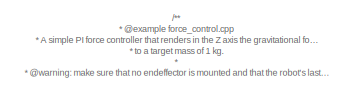
[diagram: root canvas - part 1/6, top right region]
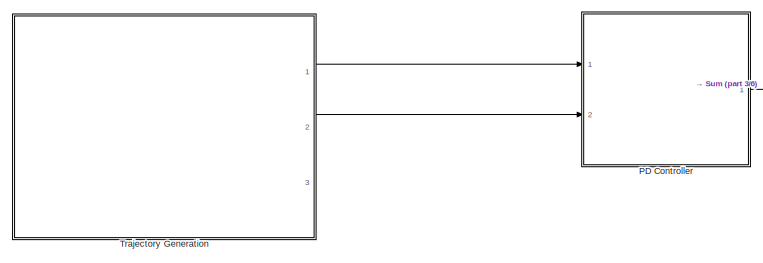
[diagram: root canvas - part 2/6, top left region]
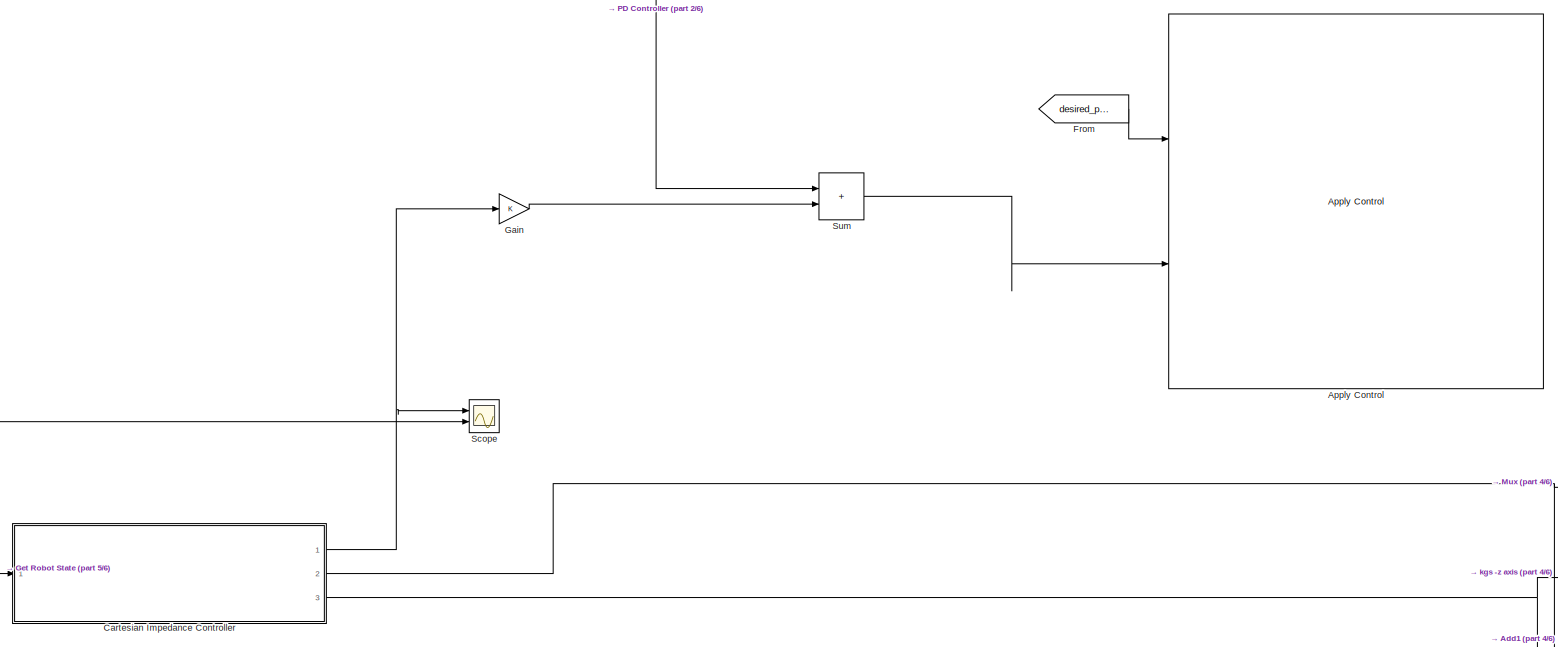
[diagram: root canvas - part 3/6, full width, middle band]
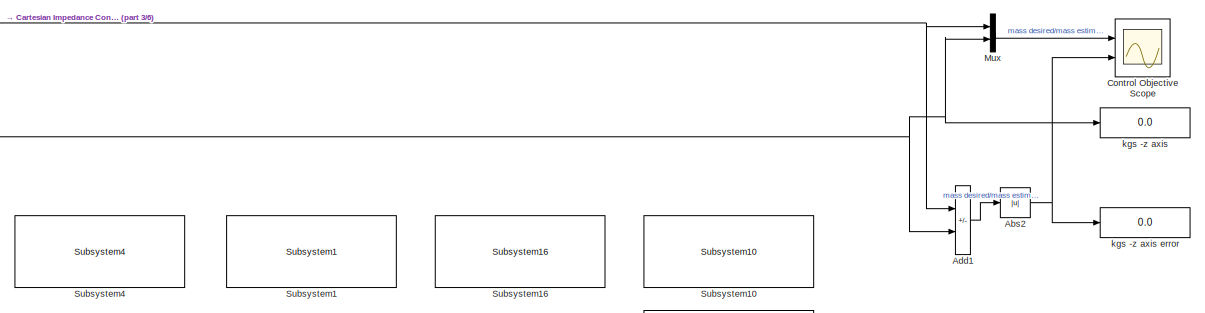
[diagram: root canvas - part 4/6, bottom right region]
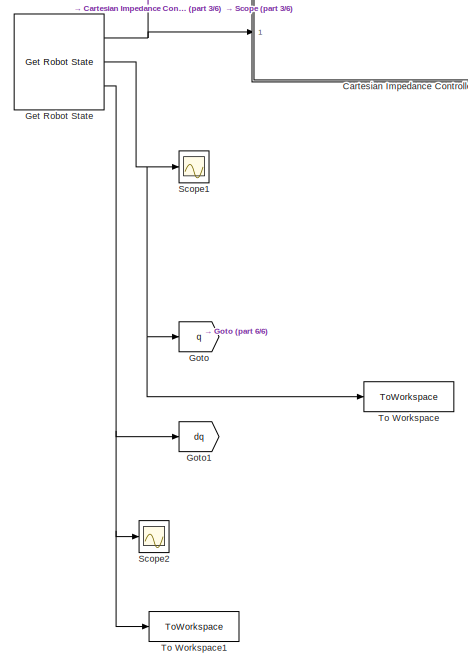
[diagram: root canvas - part 5/6, bottom left region]
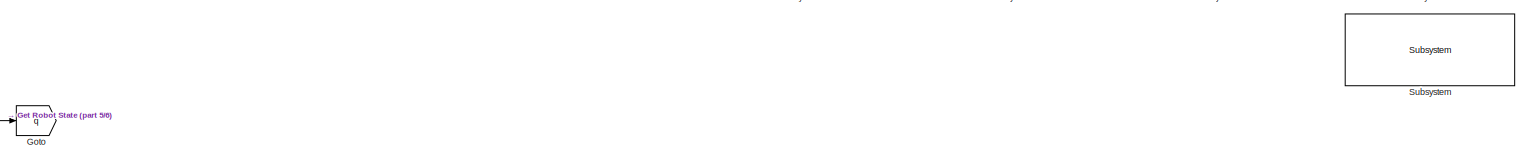
[diagram: root canvas - part 6/6, full width, bottom band]
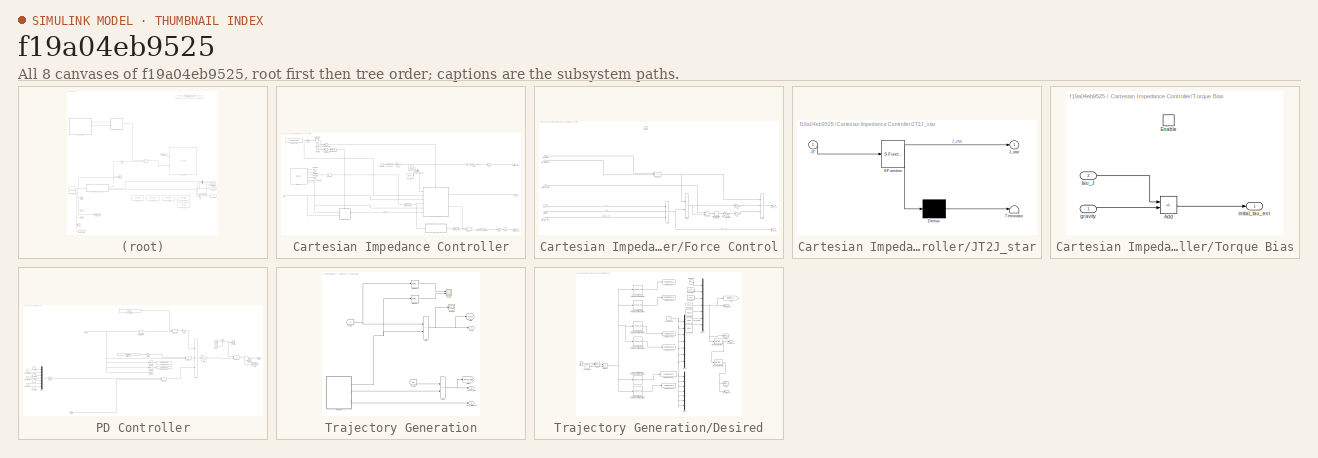
[diagram: thumbnail index - all 8 canvases of the model, root first then tree order]
MODEL slx_f19a04eb9525
KIND model
CONFIG AbsTol = auto
CONFIG EnableMultiTasking = on
CONFIG FixedStep = 0.001
CONFIG MaxStep = auto
CONFIG MinStep = auto
CONFIG PreLoadFcn = demos_common_configs();
CONFIG RelTol = 1e-3
CONFIG SampleTimeConstraint = Unconstrained
CONFIG SolverName = FixedStepDiscrete
CONFIG StartTime = 0.0
CONFIG StopTime = inf
BLOCK [Abs] Abs2
  SaturateOnIntegerOverflow = off
BLOCK [Sum] Add1
  IconShape = rectangular
  Inputs = +-
  Ports = [2, 1]
BLOCK [Reference] Apply Control  REF=franka_simulink_library/Apply Control
  Ports = [2]
  SourceBlock = franka_simulink_library/Apply Control
  SourceProductName = Franka Emika
  UserDataPersistent = on
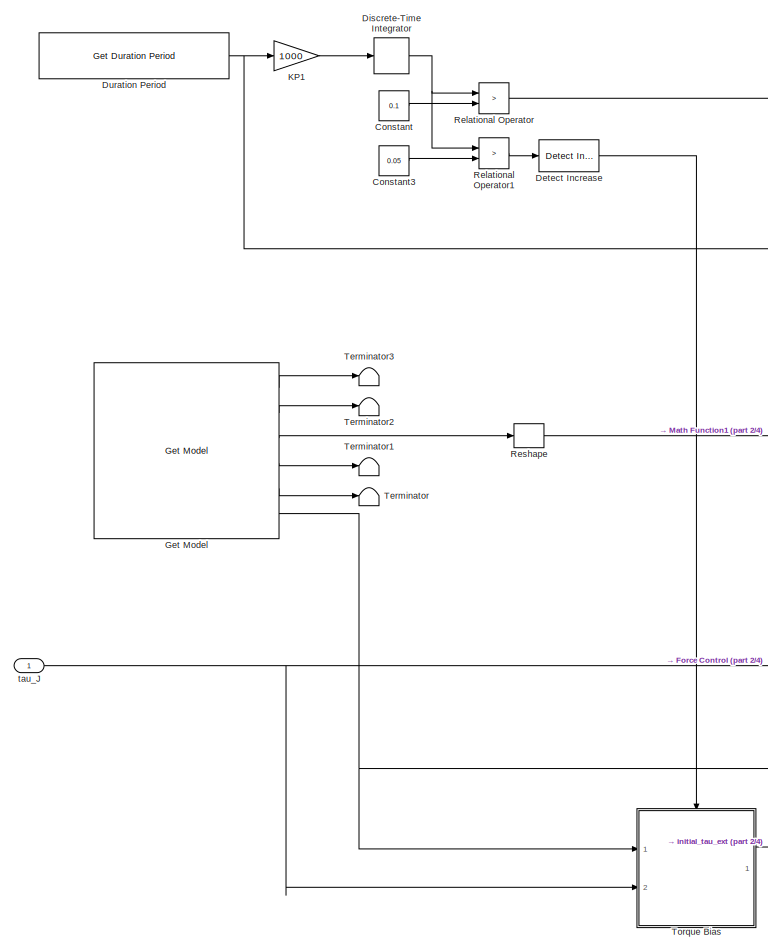
[diagram: Cartesian Impedance Controller - part 1/4, left side, full height]
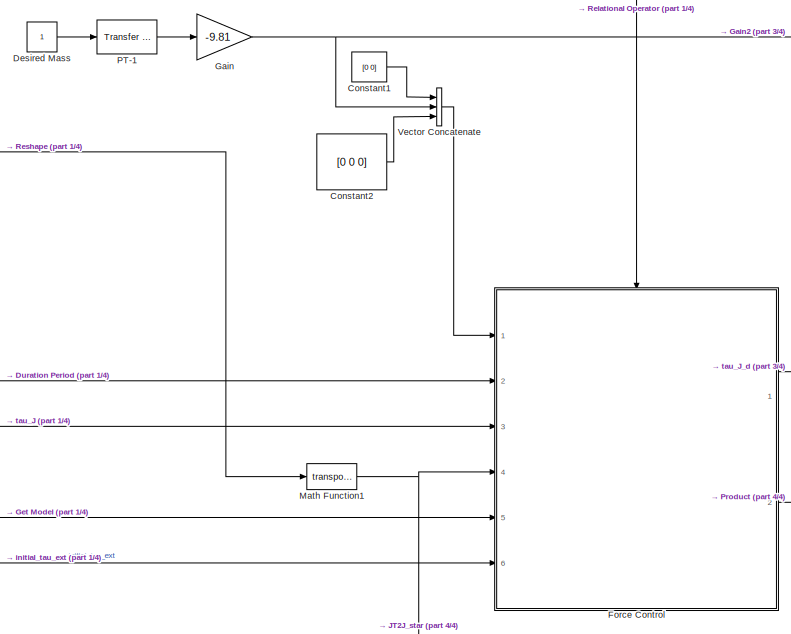
[diagram: Cartesian Impedance Controller - part 2/4, central region]
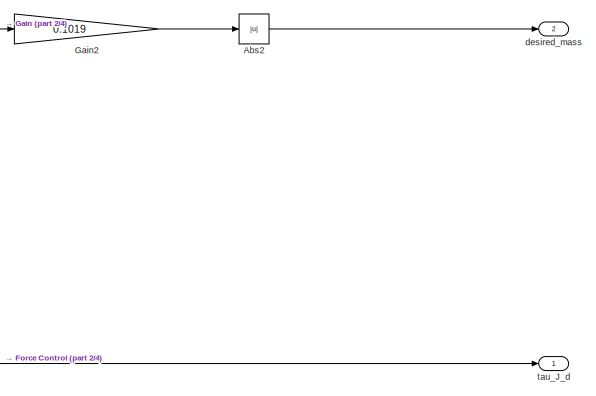
[diagram: Cartesian Impedance Controller - part 3/4, middle right region]
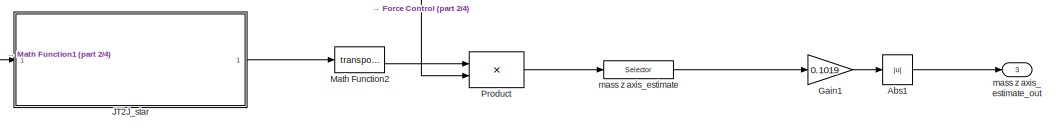
[diagram: Cartesian Impedance Controller - part 4/4, bottom right region]
BLOCK [SubSystem] Cartesian Impedance Controller
  Ports = [1, 3]
  RequestExecContextInheritance = off
BLOCK [Abs] Cartesian Impedance Controller/Abs1
  SaturateOnIntegerOverflow = off
BLOCK [Abs] Cartesian Impedance Controller/Abs2
  SaturateOnIntegerOverflow = off
BLOCK [Constant] Cartesian Impedance Controller/Constant
  Value = 0.1
BLOCK [Constant] Cartesian Impedance Controller/Constant1
  Value = [0 0]
BLOCK [Constant] Cartesian Impedance Controller/Constant2
  Value = [0 0 0]
BLOCK [Constant] Cartesian Impedance Controller/Constant3
  Value = 0.05
BLOCK [Constant] Cartesian Impedance Controller/Desired Mass
BLOCK [Reference] Cartesian Impedance Controller/Detect Increase  REF=simulink/Logic and Bit
Operations/Detect
Increase
  Ports = [1, 1]
  SourceBlock = simulink/Logic and Bit\nOperations/Detect\nIncrease
  SourceProductBaseCode = SL
  SourceType = Detect Increase
BLOCK [DiscreteIntegrator] Cartesian Impedance Controller/Discrete-Time Integrator
  ICPrevOutput = DiscIntNeverNeededParam
  ICPrevScaledInput = DiscIntNeverNeededParam
  Ports = [1, 1]
  SampleTime = -1
BLOCK [Reference] Cartesian Impedance Controller/Duration Period  REF=franka_simulink_library/Get Duration Period
  Ports = [0, 1]
  SourceBlock = franka_simulink_library/Get Duration Period
  SourceProductName = Franka Emika
BLOCK [SubSystem] Cartesian Impedance Controller/Force Control
  Ports = [6, 2, 1]
  RequestExecContextInheritance = off
BLOCK [Sum] Cartesian Impedance Controller/Force Control/Add
  IconShape = rectangular
  Inputs = +--
  Ports = [3, 1]
BLOCK [Sum] Cartesian Impedance Controller/Force Control/Add1
  IconShape = rectangular
  Inputs = +-
  Ports = [2, 1]
BLOCK [Sum] Cartesian Impedance Controller/Force Control/Add2
  IconShape = rectangular
  Inputs = +++
  Ports = [3, 1]
BLOCK [DiscreteIntegrator] Cartesian Impedance Controller/Force Control/Discrete-Time Integrator1
  ICPrevOutput = DiscIntNeverNeededParam
  ICPrevScaledInput = DiscIntNeverNeededParam
  Ports = [1, 1]
  SampleTime = 0.001
BLOCK [EnablePort] Cartesian Impedance Controller/Force Control/Enable
  Ports = []
BLOCK [Inport] Cartesian Impedance Controller/Force Control/Jacobian
  Port = 4
BLOCK [Gain] Cartesian Impedance Controller/Force Control/KI
  Gain = 2
BLOCK [Gain] Cartesian Impedance Controller/Force Control/KP
  Gain = 0.2
BLOCK [Product] Cartesian Impedance Controller/Force Control/Product
  Multiplication = Matrix(*)
  Ports = [2, 1]
BLOCK [Product] Cartesian Impedance Controller/Force Control/Product1
  Ports = [2, 1]
BLOCK [Inport] Cartesian Impedance Controller/Force Control/current_period
  Port = 2
BLOCK [Inport] Cartesian Impedance Controller/Force Control/desired mass
BLOCK [Inport] Cartesian Impedance Controller/Force Control/gravity
  Port = 5
BLOCK [Inport] Cartesian Impedance Controller/Force Control/initial_tau_ext
  Port = 6
BLOCK [Inport] Cartesian Impedance Controller/Force Control/tau_J
  Port = 3
BLOCK [Outport] Cartesian Impedance Controller/Force Control/tau_J_d
  InitialOutput = [0 0 0 0 0 0 0]
  VectorParamsAs1DForOutWhenUnconnected = off
BLOCK [Outport] Cartesian Impedance Controller/Force Control/tau_ext
  InitialOutput = [0 0 0 0 0 0 0]
  Port = 2
  VectorParamsAs1DForOutWhenUnconnected = off
BLOCK [Gain] Cartesian Impedance Controller/Force Control/time_sample_correction
  Gain = 1000
BLOCK [Gain] Cartesian Impedance Controller/Gain
  Gain = -9.81
BLOCK [Gain] Cartesian Impedance Controller/Gain1
  Gain = 0.1019
BLOCK [Gain] Cartesian Impedance Controller/Gain2
  Gain = 0.1019
BLOCK [Reference] Cartesian Impedance Controller/Get Model  REF=franka_simulink_library/Get Model
  Ports = [0, 6]
  SourceBlock = franka_simulink_library/Get Model
  SourceProductName = Franka Emika
BLOCK [SubSystem] Cartesian Impedance Controller/JT2J_star
  ErrorFcn = Stateflow.Translate.translate
  PermitHierarchicalResolution = ExplicitOnly
  Ports = [1, 1]
  RequestExecContextInheritance = off
  SFBlockType = MATLAB Function
  TreatAsAtomicUnit = on
BLOCK [Demux] Cartesian Impedance Controller/JT2J_star/ Demux 
  Outputs = 1
  Ports = [1, 1]
BLOCK [S-Function] Cartesian Impedance Controller/JT2J_star/ SFunction 
  EnableBusSupport = on
  FunctionName = sf_sfun
  PortCounts = [1 2]
  Ports = [1, 2]
  SFcnIsStateOwnerBlock = off
  SFunctionDeploymentMode = off
  Tag = Stateflow S-Function 15
BLOCK [Terminator] Cartesian Impedance Controller/JT2J_star/ Terminator 
BLOCK [Inport] Cartesian Impedance Controller/JT2J_star/JT
BLOCK [Outport] Cartesian Impedance Controller/JT2J_star/J_star
  VectorParamsAs1DForOutWhenUnconnected = off
BLOCK [Gain] Cartesian Impedance Controller/KP1
  Gain = 1000
BLOCK [Math] Cartesian Impedance Controller/Math Function1
  Operator = transpose
  Ports = [1, 1]
  SignedPower = on
BLOCK [Math] Cartesian Impedance Controller/Math Function2
  Operator = transpose
  Ports = [1, 1]
  SignedPower = on
BLOCK [Reference] Cartesian Impedance Controller/PT-1  REF=simulink/Discrete/Transfer Fcn
First Order
  Ports = [1, 1]
  SourceBlock = simulink/Discrete/Transfer Fcn\nFirst Order
  SourceProductBaseCode = SL
  SourceType = First Order Transfer Fcn
BLOCK [Product] Cartesian Impedance Controller/Product
  Multiplication = Matrix(*)
  Ports = [2, 1]
BLOCK [RelationalOperator] Cartesian Impedance Controller/Relational Operator
  InputSameDT = off
  Operator = >
  OutDataTypeStr = boolean
  Ports = [2, 1]
BLOCK [RelationalOperator] Cartesian Impedance Controller/Relational Operator1
  InputSameDT = off
  Operator = >
  OutDataTypeStr = boolean
  Ports = [2, 1]
BLOCK [Reshape] Cartesian Impedance Controller/Reshape
  OutputDimensionality = Customize
  OutputDimensions = [6,7]
  Ports = [1, 1]
BLOCK [Terminator] Cartesian Impedance Controller/Terminator
BLOCK [Terminator] Cartesian Impedance Controller/Terminator1
BLOCK [Terminator] Cartesian Impedance Controller/Terminator2
BLOCK [Terminator] Cartesian Impedance Controller/Terminator3
BLOCK [SubSystem] Cartesian Impedance Controller/Torque Bias
  Ports = [2, 1, 1]
  RequestExecContextInheritance = off
BLOCK [Sum] Cartesian Impedance Controller/Torque Bias/Add
  IconShape = rectangular
  Inputs = +-
  Ports = [2, 1]
BLOCK [EnablePort] Cartesian Impedance Controller/Torque Bias/Enable
  Ports = []
BLOCK [Inport] Cartesian Impedance Controller/Torque Bias/gravity
BLOCK [Outport] Cartesian Impedance Controller/Torque Bias/initial_tau_ext
  InitialOutput = [0 0 0 0 0 0 0]
  VectorParamsAs1DForOutWhenUnconnected = off
BLOCK [Inport] Cartesian Impedance Controller/Torque Bias/tau_J
  Port = 2
BLOCK [Concatenate] Cartesian Impedance Controller/Vector Concatenate
  NumInputs = 3
  Ports = [3, 1]
BLOCK [Outport] Cartesian Impedance Controller/desired_mass
  Port = 2
  VectorParamsAs1DForOutWhenUnconnected = off
BLOCK [Selector] Cartesian Impedance Controller/mass z axis_estimate
  IndexOptions = Index vector (dialog)
  Indices = 3
  InputPortWidth = 6
  OutputSizes = 1
  Ports = [1, 1]
BLOCK [Outport] Cartesian Impedance Controller/mass z axis_estimate_out
  Port = 3
  VectorParamsAs1DForOutWhenUnconnected = off
BLOCK [Inport] Cartesian Impedance Controller/tau_J
BLOCK [Outport] Cartesian Impedance Controller/tau_J_d
  VectorParamsAs1DForOutWhenUnconnected = off
BLOCK [Scope] Control Objective Scope
  Floating = off
  NumInputPorts = 2
  Ports = [2]
  ScopeSpecificationString = Simulink.scopes.TimeScopeBlockCfg('CurrentConfiguration', extmgr.ConfigurationSet(extmgr.Configuration('Core','General UI',true),extmgr.Configuration('Core','Source UI',true),extmgr.Configuration('Sources','WiredSimulink',true,'DataLoggingVariableName','ScopeData1','DataLoggingSaveFormat','StructureWithTime','DataLoggingDecimation','1','DataLoggingDecimateData',true),extmgr.Configuration('Visuals'...<+2391ch>
BLOCK [From] From
  GotoTag = desired_pos
  TagVisibility = global
BLOCK [Gain] Gain
BLOCK [Reference] Get Robot State  REF=franka_simulink_library/Get Robot State
  Ports = [0, 3]
  SourceBlock = franka_simulink_library/Get Robot State
  SourceProductName = Franka Emika
BLOCK [Goto] Goto
  GotoTag = q
  TagVisibility = global
BLOCK [Goto] Goto1
  GotoTag = dq
  TagVisibility = global
BLOCK [Mux] Mux
  DisplayOption = bar
  Inputs = 2
  Ports = [2, 1]
BLOCK [SubSystem] PD Controller
  Ports = [2, 1]
  RequestExecContextInheritance = off
BLOCK [Sum] PD Controller/Add1
  IconShape = rectangular
  Inputs = +++
  Ports = [3, 1]
BLOCK [Constant] PD Controller/Constant15
  Value = 70
BLOCK [Constant] PD Controller/Constant16
  Value = 70
BLOCK [Constant] PD Controller/Constant17
  Value = 70
BLOCK [Constant] PD Controller/Constant18
  Value = 15
BLOCK [Constant] PD Controller/Constant19
  Value = 5
BLOCK [Constant] PD Controller/Constant20
  Value = 5
BLOCK [Constant] PD Controller/Constant21
  Value = 5
BLOCK [Constant] PD Controller/Constant23
  Value = [2, 2, 2, 2, 2, 2, 2]
BLOCK [DiscreteIntegrator] PD Controller/Discrete-Time Integrator
  ICPrevOutput = DiscIntNeverNeededParam
  ICPrevScaledInput = DiscIntNeverNeededParam
  InitialConditionSetting = Auto
  Ports = [1, 1]
  SampleTime = -1
BLOCK [Gain] PD Controller/Gain
BLOCK [Gain] PD Controller/Gain1
  Gain = [1, 1, 1, 1, 1, 1, 1]
BLOCK [Gain] PD Controller/Gain2
BLOCK [Gain] PD Controller/Gain3
BLOCK [Goto] PD Controller/Goto
  GotoTag = PDtorque
  TagVisibility = global
BLOCK [Inport] PD Controller/Input
BLOCK [Inport] PD Controller/Input1
  Port = 2
BLOCK [Mux] PD Controller/Mux1
  DisplayOption = bar
  Inputs = 7
  Ports = [7, 1]
BLOCK [Product] PD Controller/Product1
  Ports = [2, 1]
BLOCK [Product] PD Controller/Product2
  Ports = [2, 1]
BLOCK [Product] PD Controller/Product3
  Ports = [2, 1]
BLOCK [Product] PD Controller/Product4
  Multiplication = Matrix(*)
  Ports = [2, 1]
BLOCK [Reference] PD Controller/Ramp  REF=simulink/Sources/Ramp
  Ports = [0, 1]
  SourceBlock = simulink/Sources/Ramp
  SourceProductBaseCode = SL
  SourceType = Ramp
BLOCK [Reference] PD Controller/Ramp1  REF=simulink/Sources/Ramp
  Ports = [0, 1]
  SourceBlock = simulink/Sources/Ramp
  SourceProductBaseCode = SL
  SourceType = Ramp
BLOCK [Scope] PD Controller/Scope
  Floating = off
  NumInputPorts = 1
  Ports = [1]
  ScopeSpecificationString = Simulink.scopes.TimeScopeBlockCfg('CurrentConfiguration', extmgr.ConfigurationSet(extmgr.Configuration('Core','General UI',true),extmgr.Configuration('Core','Source UI',true),extmgr.Configuration('Sources','WiredSimulink',true,'DataLoggingVariableName','ScopeData3'),extmgr.Configuration('Visuals','Time Domain',true),extmgr.Configuration('Tools','Plot Navigation',true),extmgr.Configuration('Tools',...<+40ch>
BLOCK [Scope] PD Controller/Scope1
  Floating = off
  NumInputPorts = 1
  Ports = [1]
  ScopeSpecificationString = Simulink.scopes.TimeScopeBlockCfg('CurrentConfiguration', extmgr.ConfigurationSet(extmgr.Configuration('Core','General UI',true),extmgr.Configuration('Core','Source UI',true),extmgr.Configuration('Sources','WiredSimulink',true,'DataLoggingVariableName','ScopeData4'),extmgr.Configuration('Visuals','Time Domain',true,'SerializedDisplays',{struct('MinYLimReal','-12.89609','MaxYLimReal','15.50932','YL...<+1483ch>
BLOCK [Scope] PD Controller/Scope6
  Floating = off
  NumInputPorts = 1
  Ports = [1]
  ScopeSpecificationString = Simulink.scopes.TimeScopeBlockCfg('CurrentConfiguration', extmgr.ConfigurationSet(extmgr.Configuration('Core','General UI',true),extmgr.Configuration('Core','Source UI',true),extmgr.Configuration('Sources','WiredSimulink',true,'DataLoggingVariableName','ScopeData21'),extmgr.Configuration('Visuals','Time Domain',true,'SerializedDisplays',{struct('MinYLimReal','-0.28411','MaxYLimReal','0.45465','YLa...<+1666ch>
BLOCK [Selector] PD Controller/Selector3
  IndexOptions = Index vector (dialog)
  Indices = [2]
  InputPortWidth = 7
  OutputSizes = 1
  Ports = [1, 1]
BLOCK [Selector] PD Controller/Selector4
  IndexOptions = Index vector (dialog)
  Indices = [4]
  InputPortWidth = 7
  OutputSizes = 1
  Ports = [1, 1]
BLOCK [Sum] PD Controller/Sum
  Inputs = |++
  Ports = [2, 1]
BLOCK [ToWorkspace] PD Controller/To Workspace2
  FixptAsFi = on
  MaxDataPoints = inf
  Ports = [1]
  SampleTime = -1
  SaveFormat = Structure With Time
  VariableName = pid_tracking_error_4
BLOCK [ToWorkspace] PD Controller/To Workspace3
  FixptAsFi = on
  MaxDataPoints = inf
  Ports = [1]
  SampleTime = -1
  SaveFormat = Structure With Time
  VariableName = pid_tracking_error_2
BLOCK [Outport] PD Controller/Torque
BLOCK [Constant] PD Controller/stiffness
  Value = diag([150, 150, 150, 15, 15, 15, 15])
  VectorParams1D = off
BLOCK [Scope] Scope
  Floating = off
  NumInputPorts = 2
  Ports = [2]
  ScopeSpecificationString = Simulink.scopes.TimeScopeBlockCfg('CurrentConfiguration', extmgr.ConfigurationSet(extmgr.Configuration('Core','General UI',true),extmgr.Configuration('Core','Source UI',true),extmgr.Configuration('Sources','WiredSimulink',true),extmgr.Configuration('Visuals','Time Domain',true,'SerializedDisplays',{struct('MinYLimReal','-65.5568','MaxYLimReal','31.01813','YLabelReal','','MinYLimMag','0.00000','Max...<+2111ch>
BLOCK [Scope] Scope1
  Floating = off
  NumInputPorts = 1
  Ports = [1]
  ScopeSpecificationString = Simulink.scopes.TimeScopeBlockCfg('CurrentConfiguration', extmgr.ConfigurationSet(extmgr.Configuration('Core','General UI',true),extmgr.Configuration('Core','Source UI',true),extmgr.Configuration('Sources','WiredSimulink',true,'DataLoggingVariableName','ScopeData1'),extmgr.Configuration('Visuals','Time Domain',true,'SerializedDisplays',{struct('MinYLimReal','-1.4193','MaxYLimReal','2.60353','YLabe...<+2034ch>
BLOCK [Scope] Scope2
  Floating = off
  NumInputPorts = 1
  Ports = [1]
  ScopeSpecificationString = Simulink.scopes.TimeScopeBlockCfg('CurrentConfiguration', extmgr.ConfigurationSet(extmgr.Configuration('Core','General UI',true),extmgr.Configuration('Core','Source UI',true),extmgr.Configuration('Sources','WiredSimulink',true,'DataLoggingVariableName','ScopeData2'),extmgr.Configuration('Visuals','Time Domain',true),extmgr.Configuration('Tools','Plot Navigation',true),extmgr.Configuration('Tools',...<+40ch>
BLOCK [Reference] Subsystem  REF=franka_simulink_library_misc/Subsystem
  Ports = []
  SourceBlock = franka_simulink_library_misc/Subsystem
BLOCK [Reference] Subsystem1  REF=franka_simulink_library_misc/Subsystem1
  Ports = []
  SourceBlock = franka_simulink_library_misc/Subsystem1
BLOCK [Reference] Subsystem10  REF=franka_simulink_library_misc/Subsystem10
  Ports = []
  SourceBlock = franka_simulink_library_misc/Subsystem10
BLOCK [Reference] Subsystem16  REF=franka_simulink_library_misc/Subsystem16
  Ports = []
  SourceBlock = franka_simulink_library_misc/Subsystem16
BLOCK [Reference] Subsystem4  REF=franka_simulink_library_misc/Subsystem4
  Ports = []
  SourceBlock = franka_simulink_library_misc/Subsystem4
BLOCK [Sum] Sum
  IconShape = rectangular
  Ports = [2, 1]
BLOCK [ToWorkspace] To Workspace
  FixptAsFi = on
  MaxDataPoints = inf
  Ports = [1]
  SampleTime = -1
  SaveFormat = Structure With Time
  VariableName = q
BLOCK [ToWorkspace] To Workspace1
  FixptAsFi = on
  MaxDataPoints = inf
  Ports = [1]
  SampleTime = -1
  SaveFormat = Structure With Time
  VariableName = dq
BLOCK [SubSystem] Trajectory Generation
  Ports = [0, 3]
  RequestExecContextInheritance = off
BLOCK [Sum] Trajectory Generation/Add
  IconShape = rectangular
  Inputs = -+
  Ports = [2, 1]
BLOCK [Sum] Trajectory Generation/Add2
  IconShape = rectangular
  Inputs = -+
  Ports = [2, 1]
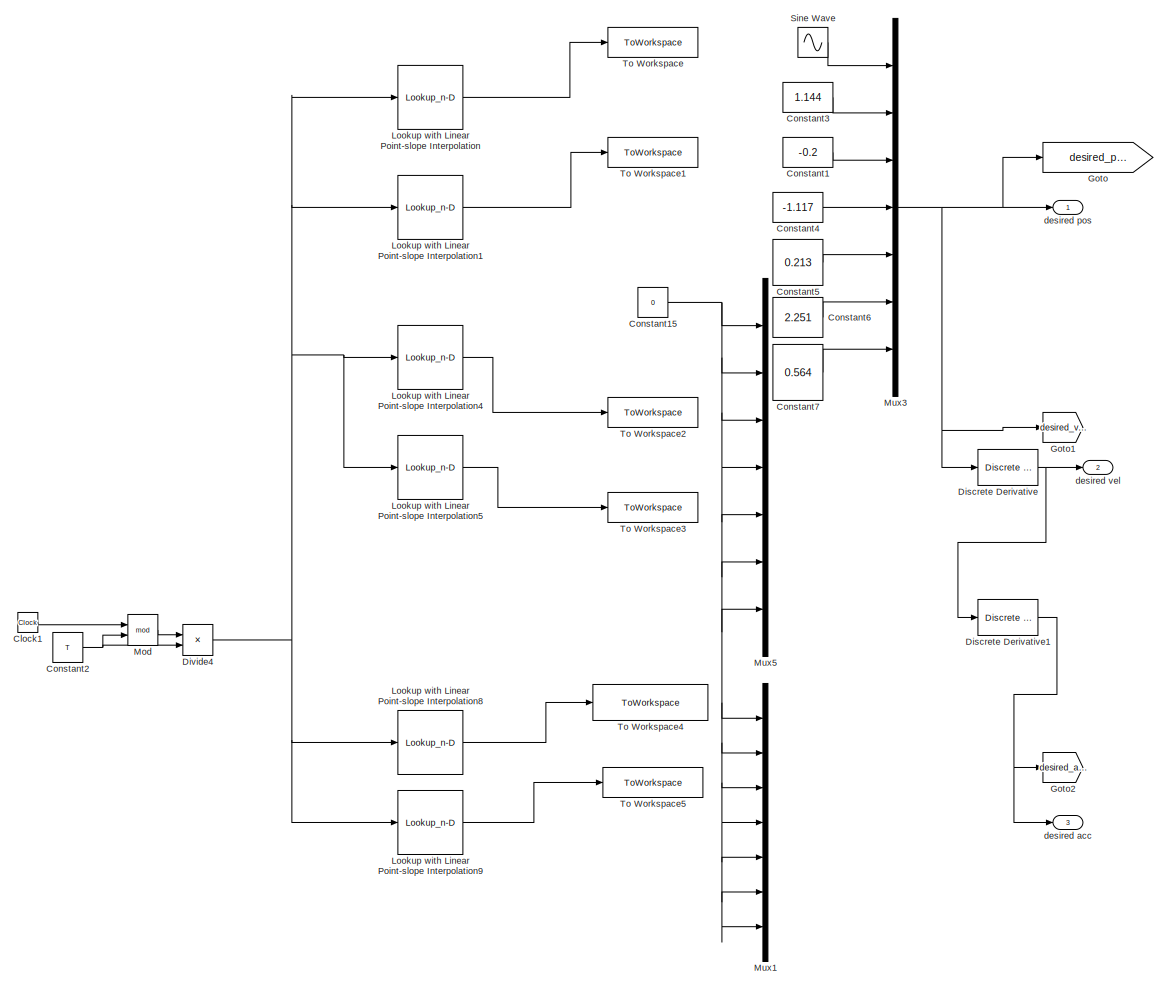
[diagram: Trajectory Generation/Desired - part 1/1, most of the canvas]
BLOCK [SubSystem] Trajectory Generation/Desired
  Ports = [0, 3]
  RequestExecContextInheritance = off
BLOCK [Clock] Trajectory Generation/Desired/Clock1
  Commented = on
BLOCK [Constant] Trajectory Generation/Desired/Constant1
  Value = -0.2
BLOCK [Constant] Trajectory Generation/Desired/Constant15
  Value = 0
BLOCK [Constant] Trajectory Generation/Desired/Constant2
  Commented = on
  Value = T
BLOCK [Constant] Trajectory Generation/Desired/Constant3
  Value = 1.144
BLOCK [Constant] Trajectory Generation/Desired/Constant4
  Value = -1.117
BLOCK [Constant] Trajectory Generation/Desired/Constant5
  Value = 0.213
BLOCK [Constant] Trajectory Generation/Desired/Constant6
  Value = 2.251
BLOCK [Constant] Trajectory Generation/Desired/Constant7
  Value = 0.564
BLOCK [Reference] Trajectory Generation/Desired/Discrete Derivative  REF=simulink/Discrete/Discrete Derivative
  Ports = [1, 1]
  SourceBlock = simulink/Discrete/Discrete Derivative
  SourceProductBaseCode = SL
  SourceType = Discrete Derivative
BLOCK [Reference] Trajectory Generation/Desired/Discrete Derivative1  REF=simulink/Discrete/Discrete Derivative
  Ports = [1, 1]
  SourceBlock = simulink/Discrete/Discrete Derivative
  SourceProductBaseCode = SL
  SourceType = Discrete Derivative
BLOCK [Product] Trajectory Generation/Desired/Divide4
  Commented = on
  Inputs = */
  Ports = [2, 1]
BLOCK [Goto] Trajectory Generation/Desired/Goto
  GotoTag = desired_pos
  TagVisibility = global
BLOCK [Goto] Trajectory Generation/Desired/Goto1
  GotoTag = desired_vel
  TagVisibility = global
BLOCK [Goto] Trajectory Generation/Desired/Goto2
  GotoTag = desired_acc
  TagVisibility = global
BLOCK [Lookup_n-D] Trajectory Generation/Desired/Lookup with Linear Point-slope Interpolation
  BreakpointsForDimension1 = linspace(0,1,length(Q2_desired))
  Commented = on
  InputPortMap = u0
  InternalRulePriority = Speed
  NumberOfTableDimensions = 1
  Ports = [1, 1]
  RndMeth = Simplest
  Table = Q2_desired
BLOCK [Lookup_n-D] Trajectory Generation/Desired/Lookup with Linear Point-slope Interpolation1
  BreakpointsForDimension1 = linspace(0,1,length(Q4_desired))
  Commented = on
  InputPortMap = u0
  InternalRulePriority = Speed
  NumberOfTableDimensions = 1
  Ports = [1, 1]
  RndMeth = Simplest
  Table = Q4_desired
BLOCK [Lookup_n-D] Trajectory Generation/Desired/Lookup with Linear Point-slope Interpolation4
  BreakpointsForDimension1 = linspace(0,1,length(dQ2_desired))
  Commented = on
  InputPortMap = u0
  InternalRulePriority = Speed
  NumberOfTableDimensions = 1
  Ports = [1, 1]
  RndMeth = Simplest
  Table = dQ2_desired
BLOCK [Lookup_n-D] Trajectory Generation/Desired/Lookup with Linear Point-slope Interpolation5
  BreakpointsForDimension1 = linspace(0,1,length(dQ4_desired))
  Commented = on
  InputPortMap = u0
  InternalRulePriority = Speed
  NumberOfTableDimensions = 1
  Ports = [1, 1]
  RndMeth = Simplest
  Table = dQ4_desired
BLOCK [Lookup_n-D] Trajectory Generation/Desired/Lookup with Linear Point-slope Interpolation8
  BreakpointsForDimension1 = linspace(0,1,length(ddQ2_desired))
  Commented = on
  InputPortMap = u0
  InternalRulePriority = Speed
  NumberOfTableDimensions = 1
  Ports = [1, 1]
  RndMeth = Simplest
  Table = ddQ2_desired
BLOCK [Lookup_n-D] Trajectory Generation/Desired/Lookup with Linear Point-slope Interpolation9
  BreakpointsForDimension1 = linspace(0,1,length(ddQ2_desired))
  Commented = on
  InputPortMap = u0
  InternalRulePriority = Speed
  NumberOfTableDimensions = 1
  Ports = [1, 1]
  RndMeth = Simplest
  Table = ddQ4_desired
BLOCK [Math] Trajectory Generation/Desired/Mod
  Commented = on
  Operator = mod
  Ports = [2, 1]
BLOCK [Mux] Trajectory Generation/Desired/Mux1
  DisplayOption = bar
  Inputs = 7
  Ports = [7, 1]
BLOCK [Mux] Trajectory Generation/Desired/Mux3
  DisplayOption = bar
  Inputs = 7
  Ports = [7, 1]
BLOCK [Mux] Trajectory Generation/Desired/Mux5
  DisplayOption = bar
  Inputs = 7
  Ports = [7, 1]
BLOCK [Sin] Trajectory Generation/Desired/Sine Wave
  Amplitude = 0.6
  Bias = 0.6
  Ports = [0, 1]
  SampleTime = 0
BLOCK [ToWorkspace] Trajectory Generation/Desired/To Workspace
  Commented = on
  FixptAsFi = on
  MaxDataPoints = inf
  Ports = [1]
  SampleTime = -1
  SaveFormat = Structure With Time
  VariableName = pid_pos_desired_2
BLOCK [ToWorkspace] Trajectory Generation/Desired/To Workspace1
  Commented = on
  FixptAsFi = on
  MaxDataPoints = inf
  Ports = [1]
  SampleTime = -1
  SaveFormat = Structure With Time
  VariableName = pid_pos_desired_4
BLOCK [ToWorkspace] Trajectory Generation/Desired/To Workspace2
  Commented = on
  FixptAsFi = on
  MaxDataPoints = inf
  Ports = [1]
  SampleTime = -1
  SaveFormat = Structure With Time
  VariableName = pid_vel_desired_2
BLOCK [ToWorkspace] Trajectory Generation/Desired/To Workspace3
  Commented = on
  FixptAsFi = on
  MaxDataPoints = inf
  Ports = [1]
  SampleTime = -1
  SaveFormat = Structure With Time
  VariableName = pid_vel_desired_4
BLOCK [ToWorkspace] Trajectory Generation/Desired/To Workspace4
  Commented = on
  FixptAsFi = on
  MaxDataPoints = inf
  Ports = [1]
  SampleTime = -1
  SaveFormat = Structure With Time
  VariableName = pid_acc_noshift_2
BLOCK [ToWorkspace] Trajectory Generation/Desired/To Workspace5
  Commented = on
  FixptAsFi = on
  MaxDataPoints = inf
  Ports = [1]
  SampleTime = -1
  SaveFormat = Structure With Time
  VariableName = pid_acc_noshift_4
BLOCK [Outport] Trajectory Generation/Desired/desired acc
  NameLocation = top
  Port = 3
BLOCK [Outport] Trajectory Generation/Desired/desired pos
BLOCK [Outport] Trajectory Generation/Desired/desired vel
  Port = 2
BLOCK [From] Trajectory Generation/From
  GotoTag = q
  TagVisibility = global
BLOCK [From] Trajectory Generation/From1
  GotoTag = dq
  TagVisibility = global
BLOCK [Goto] Trajectory Generation/Goto
  GotoTag = error
  TagVisibility = global
BLOCK [Goto] Trajectory Generation/Goto1
  GotoTag = error_dot
  TagVisibility = global
BLOCK [Scope] Trajectory Generation/Scope
  Floating = off
  NumInputPorts = 2
  Ports = [2]
  ScopeSpecificationString = Simulink.scopes.TimeScopeBlockCfg('CurrentConfiguration', extmgr.ConfigurationSet(extmgr.Configuration('Core','General UI',true),extmgr.Configuration('Core','Source UI',true),extmgr.Configuration('Sources','WiredSimulink',true,'DataLoggingVariableName','ScopeData1'),extmgr.Configuration('Visuals','Time Domain',true,'SerializedDisplays',{struct('MinYLimReal','-0.1988','MaxYLimReal','1.78917','YLabe...<+1406ch>
BLOCK [Scope] Trajectory Generation/Scope1
  Floating = off
  NumInputPorts = 1
  Ports = [1]
  ScopeSpecificationString = Simulink.scopes.TimeScopeBlockCfg('CurrentConfiguration', extmgr.ConfigurationSet(extmgr.Configuration('Core','General UI',true),extmgr.Configuration('Core','Source UI',true),extmgr.Configuration('Sources','WiredSimulink',true,'DataLoggingVariableName','ScopeData4'),extmgr.Configuration('Visuals','Time Domain',true,'SerializedDisplays',{struct('MinYLimReal','-0.143','MaxYLimReal','0.10337','YLabel...<+1458ch>
BLOCK [Selector] Trajectory Generation/Selector1
  IndexOptions = Index vector (dialog)
  Indices = [6]
  InputPortWidth = 7
  OutputSizes = 1
  Ports = [1, 1]
BLOCK [Selector] Trajectory Generation/Selector4
  IndexOptions = Index vector (dialog)
  Indices = [6]
  InputPortWidth = 7
  OutputSizes = 1
  Ports = [1, 1]
BLOCK [Outport] Trajectory Generation/acc_desired
  Port = 3
BLOCK [Outport] Trajectory Generation/error
BLOCK [Outport] Trajectory Generation/error_dot
  Port = 2
BLOCK [Display] kgs -z axis
  Decimation = 1
  Ports = [1]
BLOCK [Display] kgs -z axis error
  Decimation = 1
  Ports = [1]
ANNOTATION (root): /** * @example force_control.cpp * A simple PI force controller that renders in the Z axis the gravitational force corresponding * to a target mass of 1 kg. * * @warning: make sure that no endeffector is mounted and that the robot's last joint is in contact * with a horizontal rigid surface before starting. */
NET Abs2:1 -> Control Objective Scope:2, kgs -z axis error:1
LINE Add1:1 -> Abs2:1
LINE Cartesian Impedance Controller/Abs1:1 -> Cartesian Impedance Controller/mass z axis_estimate_out:1
LINE Cartesian Impedance Controller/Abs2:1 -> Cartesian Impedance Controller/desired_mass:1
LINE Cartesian Impedance Controller/Constant1:1 -> Cartesian Impedance Controller/Vector Concatenate:1
LINE Cartesian Impedance Controller/Constant2:1 -> Cartesian Impedance Controller/Vector Concatenate:3
LINE Cartesian Impedance Controller/Constant3:1 -> Cartesian Impedance Controller/Relational Operator1:2
LINE Cartesian Impedance Controller/Constant:1 -> Cartesian Impedance Controller/Relational Operator:2
LINE Cartesian Impedance Controller/Desired Mass:1 -> Cartesian Impedance Controller/PT-1:1
LINE Cartesian Impedance Controller/Detect Increase:1 -> Cartesian Impedance Controller/Torque Bias:enable
NET Cartesian Impedance Controller/Discrete-Time Integrator:1 -> Cartesian Impedance Controller/Relational Operator1:1, Cartesian Impedance Controller/Relational Operator:1
NET Cartesian Impedance Controller/Duration Period:1 -> Cartesian Impedance Controller/Force Control:2, Cartesian Impedance Controller/KP1:1
NET Cartesian Impedance Controller/Force Control/Add1:1 -> Cartesian Impedance Controller/Force Control/KP:1, Cartesian Impedance Controller/Force Control/Product1:2
LINE Cartesian Impedance Controller/Force Control/Add2:1 -> Cartesian Impedance Controller/Force Control/tau_J_d:1
NET Cartesian Impedance Controller/Force Control/Add:1 -> Cartesian Impedance Controller/Force Control/Add1:2, Cartesian Impedance Controller/Force Control/tau_ext:1
LINE Cartesian Impedance Controller/Force Control/Discrete-Time Integrator1:1 -> Cartesian Impedance Controller/Force Control/time_sample_correction:1
LINE Cartesian Impedance Controller/Force Control/Jacobian:1 -> Cartesian Impedance Controller/Force Control/Product:1
LINE Cartesian Impedance Controller/Force Control/KI:1 -> Cartesian Impedance Controller/Force Control/Add2:3
LINE Cartesian Impedance Controller/Force Control/KP:1 -> Cartesian Impedance Controller/Force Control/Add2:2
LINE Cartesian Impedance Controller/Force Control/Product1:1 -> Cartesian Impedance Controller/Force Control/Discrete-Time Integrator1:1
NET Cartesian Impedance Controller/Force Control/Product:1 -> Cartesian Impedance Controller/Force Control/Add1:1, Cartesian Impedance Controller/Force Control/Add2:1
LINE Cartesian Impedance Controller/Force Control/current_period:1 -> Cartesian Impedance Controller/Force Control/Product1:1
LINE Cartesian Impedance Controller/Force Control/desired mass:1 -> Cartesian Impedance Controller/Force Control/Product:2
LINE Cartesian Impedance Controller/Force Control/gravity:1 -> Cartesian Impedance Controller/Force Control/Add:2
LINE Cartesian Impedance Controller/Force Control/initial_tau_ext:1 -> Cartesian Impedance Controller/Force Control/Add:3
LINE Cartesian Impedance Controller/Force Control/tau_J:1 -> Cartesian Impedance Controller/Force Control/Add:1
LINE Cartesian Impedance Controller/Force Control/time_sample_correction:1 -> Cartesian Impedance Controller/Force Control/KI:1
LINE Cartesian Impedance Controller/Force Control:1 -> Cartesian Impedance Controller/tau_J_d:1
LINE Cartesian Impedance Controller/Force Control:2 -> Cartesian Impedance Controller/Product:2
LINE Cartesian Impedance Controller/Gain1:1 -> Cartesian Impedance Controller/Abs1:1
LINE Cartesian Impedance Controller/Gain2:1 -> Cartesian Impedance Controller/Abs2:1
NET Cartesian Impedance Controller/Gain:1 -> Cartesian Impedance Controller/Gain2:1, Cartesian Impedance Controller/Vector Concatenate:2
LINE Cartesian Impedance Controller/Get Model:1 -> Cartesian Impedance Controller/Terminator3:1
LINE Cartesian Impedance Controller/Get Model:2 -> Cartesian Impedance Controller/Terminator2:1
LINE Cartesian Impedance Controller/Get Model:3 -> Cartesian Impedance Controller/Reshape:1
LINE Cartesian Impedance Controller/Get Model:4 -> Cartesian Impedance Controller/Terminator1:1
LINE Cartesian Impedance Controller/Get Model:5 -> Cartesian Impedance Controller/Terminator:1
NET Cartesian Impedance Controller/Get Model:6 -> Cartesian Impedance Controller/Force Control:5, Cartesian Impedance Controller/Torque Bias:1
LINE Cartesian Impedance Controller/JT2J_star:1 -> Cartesian Impedance Controller/Math Function2:1
LINE Cartesian Impedance Controller/KP1:1 -> Cartesian Impedance Controller/Discrete-Time Integrator:1
NET Cartesian Impedance Controller/Math Function1:1 -> Cartesian Impedance Controller/Force Control:4, Cartesian Impedance Controller/JT2J_star:1
LINE Cartesian Impedance Controller/Math Function2:1 -> Cartesian Impedance Controller/Product:1
LINE Cartesian Impedance Controller/PT-1:1 -> Cartesian Impedance Controller/Gain:1
LINE Cartesian Impedance Controller/Product:1 -> Cartesian Impedance Controller/mass z axis_estimate:1
LINE Cartesian Impedance Controller/Relational Operator1:1 -> Cartesian Impedance Controller/Detect Increase:1
LINE Cartesian Impedance Controller/Relational Operator:1 -> Cartesian Impedance Controller/Force Control:enable
LINE Cartesian Impedance Controller/Reshape:1 -> Cartesian Impedance Controller/Math Function1:1
LINE Cartesian Impedance Controller/Torque Bias/Add:1 -> Cartesian Impedance Controller/Torque Bias/initial_tau_ext:1
LINE Cartesian Impedance Controller/Torque Bias/gravity:1 -> Cartesian Impedance Controller/Torque Bias/Add:2
LINE Cartesian Impedance Controller/Torque Bias/tau_J:1 -> Cartesian Impedance Controller/Torque Bias/Add:1
LINE Cartesian Impedance Controller/Torque Bias:1 -> Cartesian Impedance Controller/Force Control:6
LINE Cartesian Impedance Controller/Vector Concatenate:1 -> Cartesian Impedance Controller/Force Control:1
LINE Cartesian Impedance Controller/mass z axis_estimate:1 -> Cartesian Impedance Controller/Gain1:1
NET Cartesian Impedance Controller/tau_J:1 -> Cartesian Impedance Controller/Force Control:3, Cartesian Impedance Controller/Torque Bias:2
NET Cartesian Impedance Controller:1 -> Gain:1, Scope:1
NET Cartesian Impedance Controller:2 -> Add1:1, Mux:1
NET Cartesian Impedance Controller:3 -> Add1:2, Mux:2, kgs -z axis:1
LINE From:1 -> Apply Control:1
LINE Gain:1 -> Sum:2
NET Get Robot State:1 -> Cartesian Impedance Controller:1, Scope:2
NET Get Robot State:2 -> Goto:1, Scope1:1, To Workspace:1
NET Get Robot State:3 -> Goto1:1, Scope2:1, To Workspace1:1
LINE Mux:1 -> Control Objective Scope:1
LINE PD Controller/Add1:1 -> PD Controller/Gain1:1
LINE PD Controller/Constant15:1 -> PD Controller/Mux1:1
LINE PD Controller/Constant16:1 -> PD Controller/Mux1:2
LINE PD Controller/Constant17:1 -> PD Controller/Mux1:3
LINE PD Controller/Constant18:1 -> PD Controller/Mux1:4
LINE PD Controller/Constant19:1 -> PD Controller/Mux1:6
LINE PD Controller/Constant20:1 -> PD Controller/Mux1:7
LINE PD Controller/Constant21:1 -> PD Controller/Mux1:5
LINE PD Controller/Constant23:1 -> PD Controller/Product2:1
LINE PD Controller/Discrete-Time Integrator:1 -> PD Controller/Product2:2
LINE PD Controller/Gain1:1 -> PD Controller/Product3:2
LINE PD Controller/Gain2:1 -> PD Controller/Add1:1
LINE PD Controller/Gain3:1 -> PD Controller/Product1:1
LINE PD Controller/Gain:1 -> PD Controller/Product4:1
LINE PD Controller/Input1:1 -> PD Controller/Product1:2
NET PD Controller/Input:1 -> PD Controller/Discrete-Time Integrator:1, PD Controller/Product4:2, PD Controller/Scope6:1, PD Controller/Selector3:1, PD Controller/Selector4:1
LINE PD Controller/Mux1:1 -> PD Controller/Gain3:1
LINE PD Controller/Product1:1 -> PD Controller/Add1:3
LINE PD Controller/Product2:1 -> PD Controller/Gain2:1
NET PD Controller/Product3:1 -> PD Controller/Goto:1, PD Controller/Scope1:1, PD Controller/Torque:1
LINE PD Controller/Product4:1 -> PD Controller/Add1:2
LINE PD Controller/Ramp1:1 -> PD Controller/Sum:2
LINE PD Controller/Ramp:1 -> PD Controller/Sum:1
LINE PD Controller/Selector3:1 -> PD Controller/To Workspace3:1
LINE PD Controller/Selector4:1 -> PD Controller/To Workspace2:1
NET PD Controller/Sum:1 -> PD Controller/Product3:1, PD Controller/Scope:1
LINE PD Controller/stiffness:1 -> PD Controller/Gain:1
LINE PD Controller:1 -> Sum:1
LINE Sum:1 -> Apply Control:2
NET Trajectory Generation/Add2:1 -> Trajectory Generation/Goto1:1, Trajectory Generation/error_dot:1
NET Trajectory Generation/Add:1 -> Trajectory Generation/Goto:1, Trajectory Generation/Scope1:1, Trajectory Generation/error:1
LINE Trajectory Generation/Desired/Clock1:1 -> Trajectory Generation/Desired/Mod:1
NET Trajectory Generation/Desired/Constant15:1 -> Trajectory Generation/Desired/Mux1:1, Trajectory Generation/Desired/Mux1:2, Trajectory Generation/Desired/Mux1:3, Trajectory Generation/Desired/Mux1:4, Trajectory Generation/Desired/Mux1:5, Trajectory Generation/Desired/Mux1:6, Trajectory Generation/Desired/Mux1:7, Trajectory Generation/Desired/Mux5:1, Trajectory Generation/Desired/Mux5:2, Trajectory Generation/Desired/Mux5:3, Trajectory Generation/Desired/Mux5:4, Trajectory Generation/Desired/Mux5:5, Trajectory Generation/Desired/Mux5:6, Trajectory Generation/Desired/Mux5:7
LINE Trajectory Generation/Desired/Constant1:1 -> Trajectory Generation/Desired/Mux3:3
NET Trajectory Generation/Desired/Constant2:1 -> Trajectory Generation/Desired/Divide4:2, Trajectory Generation/Desired/Mod:2
LINE Trajectory Generation/Desired/Constant3:1 -> Trajectory Generation/Desired/Mux3:2
LINE Trajectory Generation/Desired/Constant4:1 -> Trajectory Generation/Desired/Mux3:4
LINE Trajectory Generation/Desired/Constant5:1 -> Trajectory Generation/Desired/Mux3:5
LINE Trajectory Generation/Desired/Constant6:1 -> Trajectory Generation/Desired/Mux3:6
LINE Trajectory Generation/Desired/Constant7:1 -> Trajectory Generation/Desired/Mux3:7
NET Trajectory Generation/Desired/Discrete Derivative1:1 -> Trajectory Generation/Desired/Goto2:1, Trajectory Generation/Desired/desired acc:1
NET Trajectory Generation/Desired/Discrete Derivative:1 -> Trajectory Generation/Desired/Discrete Derivative1:1, Trajectory Generation/Desired/desired vel:1
NET Trajectory Generation/Desired/Divide4:1 -> Trajectory Generation/Desired/Lookup with Linear Point-slope Interpolation1:1, Trajectory Generation/Desired/Lookup with Linear Point-slope Interpolation4:1, Trajectory Generation/Desired/Lookup with Linear Point-slope Interpolation5:1, Trajectory Generation/Desired/Lookup with Linear Point-slope Interpolation8:1, Trajectory Generation/Desired/Lookup with Linear Point-slope Interpolation9:1, Trajectory Generation/Desired/Lookup with Linear Point-slope Interpolation:1
LINE Trajectory Generation/Desired/Lookup with Linear Point-slope Interpolation1:1 -> Trajectory Generation/Desired/To Workspace1:1
LINE Trajectory Generation/Desired/Lookup with Linear Point-slope Interpolation4:1 -> Trajectory Generation/Desired/To Workspace2:1
LINE Trajectory Generation/Desired/Lookup with Linear Point-slope Interpolation5:1 -> Trajectory Generation/Desired/To Workspace3:1
LINE Trajectory Generation/Desired/Lookup with Linear Point-slope Interpolation8:1 -> Trajectory Generation/Desired/To Workspace4:1
LINE Trajectory Generation/Desired/Lookup with Linear Point-slope Interpolation9:1 -> Trajectory Generation/Desired/To Workspace5:1
LINE Trajectory Generation/Desired/Lookup with Linear Point-slope Interpolation:1 -> Trajectory Generation/Desired/To Workspace:1
LINE Trajectory Generation/Desired/Mod:1 -> Trajectory Generation/Desired/Divide4:1
NET Trajectory Generation/Desired/Mux3:1 -> Trajectory Generation/Desired/Discrete Derivative:1, Trajectory Generation/Desired/Goto1:1, Trajectory Generation/Desired/Goto:1, Trajectory Generation/Desired/desired pos:1
LINE Trajectory Generation/Desired/Sine Wave:1 -> Trajectory Generation/Desired/Mux3:1
NET Trajectory Generation/Desired:1 -> Trajectory Generation/Add:2, Trajectory Generation/Selector1:1
LINE Trajectory Generation/Desired:2 -> Trajectory Generation/Add2:2
LINE Trajectory Generation/Desired:3 -> Trajectory Generation/acc_desired:1
LINE Trajectory Generation/From1:1 -> Trajectory Generation/Add2:1
NET Trajectory Generation/From:1 -> Trajectory Generation/Add:1, Trajectory Generation/Selector4:1
LINE Trajectory Generation/Selector1:1 -> Trajectory Generation/Scope:2
LINE Trajectory Generation/Selector4:1 -> Trajectory Generation/Scope:1
LINE Trajectory Generation:1 -> PD Controller:1
LINE Trajectory Generation:2 -> PD Controller:2
note: NET lines group one-source signal fan-out (src -> all destinations, sorted); 1:1 wires keep LINE
CHART Cartesian Impedance Controller/JT2J_star states=1 transitions=1
  STATE_LABEL 'eML_blk_kernel()'
  STATE_LABEL "SCRIPT:\nfunction J_star = JT2J_star(JT)\n%#codegen\n\nJ = JT';\n% low isotropic damping, the value should be much smaller than lambda_max^2\nbeta =0;\n% damping added in singular directions, we chose it to be equal to\n% threshold\n% lambda_max = singularity_threshold_inverse_kinematics; \n% SVD decomposition\n[U,S,~] = svd(J);\nsigma = diag(S);\n% rank\nsingularity_threshold_inverse_kinematics = eps;\nr = sum(...<+506ch>"
CHART  states=0 transitions=0
